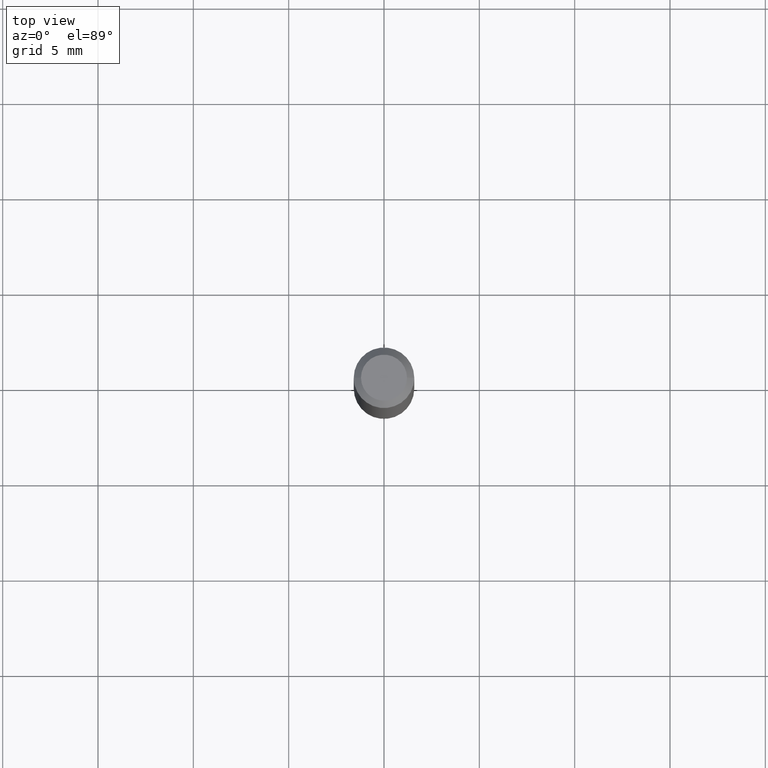
[diagram: clean part render]
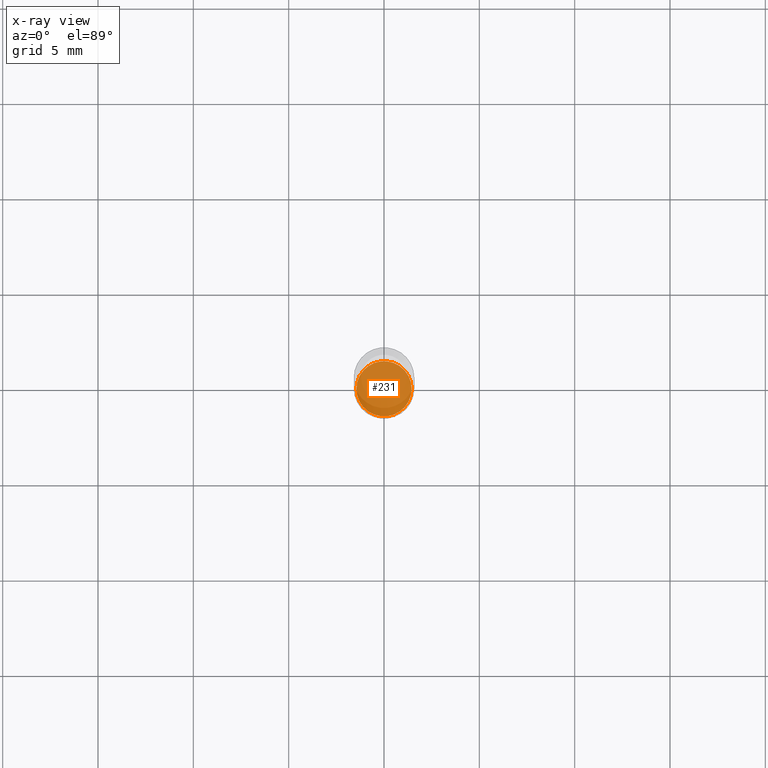
[diagram: x-ray — body ghosted, one internal face saturated and labeled with its STEP entity id]
A machine part, top view, then the same camera in x-ray: the body is ghosted and one INTERNAL B-rep face — a face not visible from any outside direction — is saturated and labeled: STEP entity #231.
In plain terms, the highlighted planar face has unit normal (-0, 0, 1).
Its self-contained STEP definition (entity closure, byte-faithful):
#14 = DIRECTION ( 'NONE',  ( -2.445468806185136597E-29, 3.491481338843145583E-15, 1.000000000000000000 ) ) ;
#47 = CARTESIAN_POINT ( 'NONE',  ( 3.246359840210769662E-29, -4.634941477314276569E-15, -1.327500000000000346 ) ) ;
#105 = DIRECTION ( 'NONE',  ( 1.000000000000000000, -6.982962677686265922E-15, 4.876176775795935793E-29 ) ) ;
#119 = AXIS2_PLACEMENT_3D ( 'NONE', #47, #483, #206 ) ;
#144 = PLANE ( 'NONE',  #253 ) ;
#165 = ORIENTED_EDGE ( 'NONE', *, *, #390, .F. ) ;
#178 = VERTEX_POINT ( 'NONE', #493 ) ;
#183 = EDGE_CURVE ( 'NONE', #178, #452, #408, .T. ) ;
#206 = DIRECTION ( 'NONE',  ( 1.000000000000000000, -6.982962677686268288E-15, 0.000000000000000000 ) ) ;
#208 = ORIENTED_EDGE ( 'NONE', *, *, #183, .F. ) ;
#231 = ADVANCED_FACE ( 'NONE', ( #343 ), #144, .F. ) ;
#253 = AXIS2_PLACEMENT_3D ( 'NONE', #304, #468, #105 ) ;
#292 = DIRECTION ( 'NONE',  ( 1.000000000000000000, -6.982962677686268288E-15, 0.000000000000000000 ) ) ;
#300 = CARTESIAN_POINT ( 'NONE',  ( 3.246359840210769662E-29, -4.634941477314276569E-15, -1.327500000000000346 ) ) ;
#304 = CARTESIAN_POINT ( 'NONE',  ( 3.246359840210769662E-29, -4.634941477314276569E-15, -1.327500000000000346 ) ) ;
#343 = FACE_OUTER_BOUND ( 'NONE', #406, .T. ) ;
#363 = CARTESIAN_POINT ( 'NONE',  ( 0.05699999999999997430, -5.032970349942393582E-15, -1.327500000000000346 ) ) ;
#369 = CIRCLE ( 'NONE', #119, 0.05699999999999997430 ) ;
#390 = EDGE_CURVE ( 'NONE', #452, #178, #369, .T. ) ;
#406 = EDGE_LOOP ( 'NONE', ( #165, #208 ) ) ;
#408 = CIRCLE ( 'NONE', #466, 0.05699999999999997430 ) ;
#452 = VERTEX_POINT ( 'NONE', #363 ) ;
#466 = AXIS2_PLACEMENT_3D ( 'NONE', #300, #14, #292 ) ;
#468 = DIRECTION ( 'NONE',  ( -2.438088387897960049E-29, 3.491481338843145188E-15, 1.000000000000000000 ) ) ;
#483 = DIRECTION ( 'NONE',  ( -2.445468806185136597E-29, 3.491481338843145583E-15, 1.000000000000000000 ) ) ;
#493 = CARTESIAN_POINT ( 'NONE',  ( -0.05699999999999997430, -4.227282890756908691E-15, -1.327500000000000346 ) ) ;